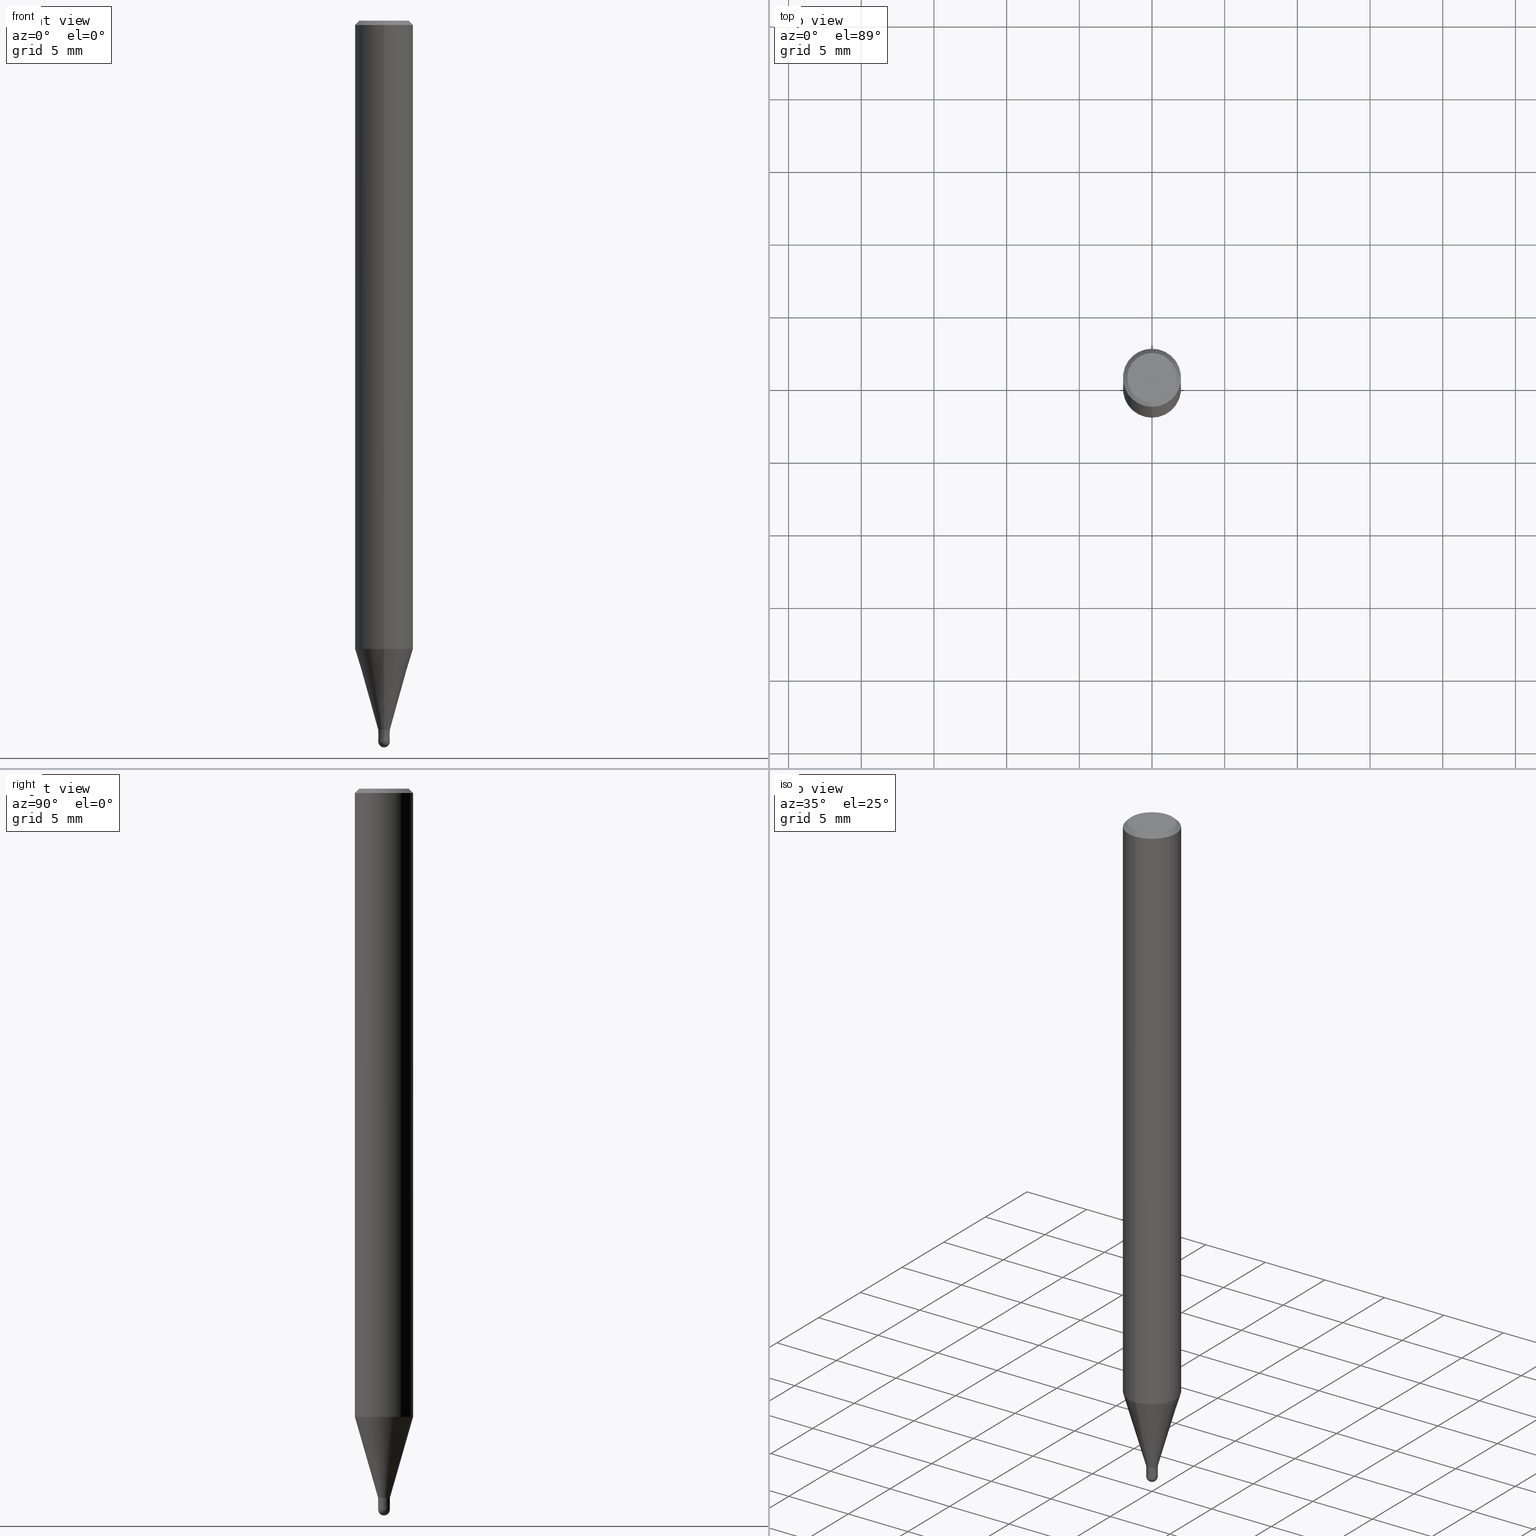
[diagram: canonical four-view strip — front | top / right | iso, engineering-drawing reading convention]
A machine part, canonical four-view strip (front | top / right | iso — engineering-drawing reading convention). The complete STEP part file that produces these views, byte-faithful:
ISO-10303-21;
HEADER;
FILE_DESCRIPTION(('no description'),'unknown implementation level');
FILE_NAME('CFB3008-0120-Huellk.stp','  ',('CIMSOURCE GmbH'),('CADClick - KiM GmbH - www.kimweb.de'),'unknown preprocess','ACIS','unknown authorization');
FILE_SCHEMA(('automotive_design'));
ENDSEC;
DATA;
#1=MECHANICAL_DESIGN_GEOMETRIC_PRESENTATION_REPRESENTATION(' ',(#14,#15,#16,#17,#18,#19,#20,#21,#22,#23,#24,#25,#26,#27,#28,#29,#30,#31,#32,#33,#34,#35,#36,#37,#38,#39,#40,#41,#42,#43,#44,#45,#46,#47,#48,#49,#50,#51,#52,#53,#54,#55,#56,#57,#58,#59,#60,#61,#62,#63,#64,#65,#66),#10);
#2=PRODUCT_DEFINITION_CONTEXT('',#67,'design');
#3=APPLICATION_PROTOCOL_DEFINITION('INTERNATIONAL STANDARD','automotive_design',1994,#67);
#4=PRODUCT_CATEGORY_RELATIONSHIP('NONE','NONE',#68,#69);
#5=SHAPE_DEFINITION_REPRESENTATION(#70,#71);
#6=PRODUCT_DEFINITION_CONTEXT('',#72,'design');
#7=APPLICATION_PROTOCOL_DEFINITION('INTERNATIONAL STANDARD','automotive_design',1994,#72);
#8=PRODUCT_CATEGORY_RELATIONSHIP('NONE','NONE',#73,#74);
#9=SHAPE_DEFINITION_REPRESENTATION(#75,#76);
#10= (GEOMETRIC_REPRESENTATION_CONTEXT(3)GLOBAL_UNCERTAINTY_ASSIGNED_CONTEXT((#79))GLOBAL_UNIT_ASSIGNED_CONTEXT((#81,#82,#83))REPRESENTATION_CONTEXT('NONE','WORKSPACE'));
#14=STYLED_ITEM('',(#85),#86);
#15=STYLED_ITEM('',(#87),#88);
#16=STYLED_ITEM('',(#89),#90);
#17=STYLED_ITEM('',(#91),#92);
#18=STYLED_ITEM('',(#93),#94);
#19=STYLED_ITEM('',(#95),#96);
#20=STYLED_ITEM('',(#97),#98);
#21=STYLED_ITEM('',(#99),#100);
#22=STYLED_ITEM('',(#101),#102);
#23=STYLED_ITEM('',(#103),#104);
#24=STYLED_ITEM('',(#105),#106);
#25=STYLED_ITEM('',(#107),#108);
#26=STYLED_ITEM('',(#109),#110);
#27=STYLED_ITEM('',(#111),#112);
#28=STYLED_ITEM('',(#113),#114);
#29=STYLED_ITEM('',(#115),#116);
#30=STYLED_ITEM('',(#117),#118);
#31=STYLED_ITEM('',(#119),#120);
#32=STYLED_ITEM('',(#121),#122);
#33=STYLED_ITEM('',(#123),#124);
#34=STYLED_ITEM('',(#125),#126);
#35=STYLED_ITEM('',(#127),#128);
#36=STYLED_ITEM('',(#129),#130);
#37=STYLED_ITEM('',(#131),#132);
#38=STYLED_ITEM('',(#133),#134);
#39=STYLED_ITEM('',(#135),#136);
#40=STYLED_ITEM('',(#137),#138);
#41=STYLED_ITEM('',(#139),#140);
#42=STYLED_ITEM('',(#141),#142);
#43=STYLED_ITEM('',(#143),#144);
#44=STYLED_ITEM('',(#145),#146);
#45=STYLED_ITEM('',(#147),#148);
#46=STYLED_ITEM('',(#149),#150);
#47=STYLED_ITEM('',(#151),#152);
#48=STYLED_ITEM('',(#153),#154);
#49=STYLED_ITEM('',(#155),#156);
#50=STYLED_ITEM('',(#157),#158);
#51=STYLED_ITEM('',(#159),#160);
#52=STYLED_ITEM('',(#161),#162);
#53=STYLED_ITEM('',(#163),#164);
#54=STYLED_ITEM('',(#165),#166);
#55=STYLED_ITEM('',(#167),#168);
#56=STYLED_ITEM('',(#169),#170);
#57=STYLED_ITEM('',(#171),#172);
#58=STYLED_ITEM('',(#173),#174);
#59=STYLED_ITEM('',(#175),#176);
#60=STYLED_ITEM('',(#177),#178);
#61=STYLED_ITEM('',(#179),#180);
#62=STYLED_ITEM('',(#181),#182);
#63=STYLED_ITEM('',(#183),#184);
#64=STYLED_ITEM('',(#185),#186);
#65=STYLED_ITEM('',(#187),#188);
#66=STYLED_ITEM('',(#189),#190);
#67=APPLICATION_CONTEXT(' ');
#68=PRODUCT_CATEGORY('part','NONE');
#69=PRODUCT_RELATED_PRODUCT_CATEGORY('detail',' ',(#191));
#70=PRODUCT_DEFINITION_SHAPE('NONE','NONE',#192);
#71=ADVANCED_BREP_SHAPE_REPRESENTATION('1',(#116,#193),#10);
#72=APPLICATION_CONTEXT(' ');
#73=PRODUCT_CATEGORY('part','NONE');
#74=PRODUCT_RELATED_PRODUCT_CATEGORY('detail',' ',(#194));
#75=PRODUCT_DEFINITION_SHAPE('NONE','NONE',#195);
#76=ADVANCED_BREP_SHAPE_REPRESENTATION('2',(#96,#196),#10);
#79=UNCERTAINTY_MEASURE_WITH_UNIT(LENGTH_MEASURE(1.0E-006),#81,'','');
#81= (CONVERSION_BASED_UNIT('MILLIMETRE',#199)LENGTH_UNIT()NAMED_UNIT(#202));
#82= (NAMED_UNIT(#204)PLANE_ANGLE_UNIT()SI_UNIT($,.RADIAN.));
#83= (NAMED_UNIT(#204)SOLID_ANGLE_UNIT()SI_UNIT($,.STERADIAN.));
#85=PRESENTATION_STYLE_ASSIGNMENT((#210));
#86=VERTEX_POINT('',#211);
#87=PRESENTATION_STYLE_ASSIGNMENT((#212));
#88=ADVANCED_FACE('',(#213),#214,.T.);
#89=PRESENTATION_STYLE_ASSIGNMENT((#215));
#90=ADVANCED_FACE('',(#216),#217,.T.);
#91=PRESENTATION_STYLE_ASSIGNMENT((#218));
#92=EDGE_CURVE('',#180,#130,#219,.T.);
#93=PRESENTATION_STYLE_ASSIGNMENT((#220));
#94=ADVANCED_FACE('',(#221),#222,.T.);
#95=PRESENTATION_STYLE_ASSIGNMENT((#223));
#96=MANIFOLD_SOLID_BREP('2',#224);
#97=PRESENTATION_STYLE_ASSIGNMENT((#225));
#98=EDGE_CURVE('',#130,#180,#226,.T.);
#99=PRESENTATION_STYLE_ASSIGNMENT((#227));
#100=EDGE_CURVE('',#182,#184,#228,.T.);
#101=PRESENTATION_STYLE_ASSIGNMENT((#229));
#102=EDGE_CURVE('',#120,#150,#230,.T.);
#103=PRESENTATION_STYLE_ASSIGNMENT((#231));
#104=ADVANCED_FACE('',(#232),#233,.T.);
#105=PRESENTATION_STYLE_ASSIGNMENT((#234));
#106=ADVANCED_FACE('',(#235),#236,.T.);
#107=PRESENTATION_STYLE_ASSIGNMENT((#237));
#108=ADVANCED_FACE('',(#238),#239,.T.);
#109=PRESENTATION_STYLE_ASSIGNMENT((#240));
#110=ADVANCED_FACE('',(#241),#242,.T.);
#111=PRESENTATION_STYLE_ASSIGNMENT((#243));
#112=EDGE_CURVE('',#182,#174,#244,.T.);
#113=PRESENTATION_STYLE_ASSIGNMENT((#245));
#114=EDGE_CURVE('',#156,#126,#246,.T.);
#115=PRESENTATION_STYLE_ASSIGNMENT((#247));
#116=MANIFOLD_SOLID_BREP('1',#248);
#117=PRESENTATION_STYLE_ASSIGNMENT((#249));
#118=ADVANCED_FACE('',(#250),#251,.T.);
#119=PRESENTATION_STYLE_ASSIGNMENT((#252));
#120=VERTEX_POINT('',#253);
#121=PRESENTATION_STYLE_ASSIGNMENT((#254));
#122=EDGE_CURVE('',#186,#174,#255,.T.);
#123=PRESENTATION_STYLE_ASSIGNMENT((#256));
#124=EDGE_CURVE('',#184,#182,#257,.T.);
#125=PRESENTATION_STYLE_ASSIGNMENT((#258));
#126=VERTEX_POINT('',#259);
#127=PRESENTATION_STYLE_ASSIGNMENT((#260));
#128=ADVANCED_FACE('',(#261),#262,.T.);
#129=PRESENTATION_STYLE_ASSIGNMENT((#263));
#130=VERTEX_POINT('',#264);
#131=PRESENTATION_STYLE_ASSIGNMENT((#265));
#132=EDGE_CURVE('',#154,#190,#266,.T.);
#133=PRESENTATION_STYLE_ASSIGNMENT((#267));
#134=EDGE_CURVE('',#130,#190,#268,.T.);
#135=PRESENTATION_STYLE_ASSIGNMENT((#269));
#136=EDGE_CURVE('',#130,#180,#270,.T.);
#137=PRESENTATION_STYLE_ASSIGNMENT((#271));
#138=ADVANCED_FACE('',(#272),#273,.T.);
#139=PRESENTATION_STYLE_ASSIGNMENT((#274));
#140=ADVANCED_FACE('',(#275),#276,.T.);
#141=PRESENTATION_STYLE_ASSIGNMENT((#277));
#142=EDGE_CURVE('',#174,#186,#278,.T.);
#143=PRESENTATION_STYLE_ASSIGNMENT((#279));
#144=EDGE_CURVE('',#186,#184,#280,.T.);
#145=PRESENTATION_STYLE_ASSIGNMENT((#281));
#146=ADVANCED_FACE('',(#282),#283,.T.);
#147=PRESENTATION_STYLE_ASSIGNMENT((#284));
#148=EDGE_CURVE('',#120,#176,#285,.T.);
#149=PRESENTATION_STYLE_ASSIGNMENT((#286));
#150=VERTEX_POINT('',#287);
#151=PRESENTATION_STYLE_ASSIGNMENT((#288));
#152=EDGE_CURVE('',#126,#156,#289,.T.);
#153=PRESENTATION_STYLE_ASSIGNMENT((#290));
#154=VERTEX_POINT('',#291);
#155=PRESENTATION_STYLE_ASSIGNMENT((#292));
#156=VERTEX_POINT('',#293);
#157=PRESENTATION_STYLE_ASSIGNMENT((#294));
#158=EDGE_CURVE('',#150,#156,#295,.T.);
#159=PRESENTATION_STYLE_ASSIGNMENT((#296));
#160=EDGE_CURVE('',#154,#180,#297,.T.);
#161=PRESENTATION_STYLE_ASSIGNMENT((#298));
#162=EDGE_CURVE('',#176,#86,#299,.T.);
#163=PRESENTATION_STYLE_ASSIGNMENT((#300));
#164=ADVANCED_FACE('',(#301),#302,.T.);
#165=PRESENTATION_STYLE_ASSIGNMENT((#303));
#166=EDGE_CURVE('',#86,#176,#304,.T.);
#167=PRESENTATION_STYLE_ASSIGNMENT((#305));
#168=EDGE_CURVE('',#126,#120,#306,.T.);
#169=PRESENTATION_STYLE_ASSIGNMENT((#307));
#170=EDGE_CURVE('',#190,#154,#308,.T.);
#171=PRESENTATION_STYLE_ASSIGNMENT((#309));
#172=ADVANCED_FACE('',(#310,#311),#312,.T.);
#173=PRESENTATION_STYLE_ASSIGNMENT((#313));
#174=VERTEX_POINT('',#314);
#175=PRESENTATION_STYLE_ASSIGNMENT((#315));
#176=VERTEX_POINT('',#316);
#177=PRESENTATION_STYLE_ASSIGNMENT((#317));
#178=EDGE_CURVE('',#86,#150,#318,.T.);
#179=PRESENTATION_STYLE_ASSIGNMENT((#319));
#180=VERTEX_POINT('',#320);
#181=PRESENTATION_STYLE_ASSIGNMENT((#321));
#182=VERTEX_POINT('',#322);
#183=PRESENTATION_STYLE_ASSIGNMENT((#323));
#184=VERTEX_POINT('',#324);
#185=PRESENTATION_STYLE_ASSIGNMENT((#325));
#186=VERTEX_POINT('',#326);
#187=PRESENTATION_STYLE_ASSIGNMENT((#327));
#188=EDGE_CURVE('',#150,#120,#328,.T.);
#189=PRESENTATION_STYLE_ASSIGNMENT((#329));
#190=VERTEX_POINT('',#330);
#191=PRODUCT('1','1','PART-1-DESC',(#331));
#192=PRODUCT_DEFINITION('NONE','NONE',#332,#2);
#193=AXIS2_PLACEMENT_3D('',#333,#334,#335);
#194=PRODUCT('2','2','PART-2-DESC',(#336));
#195=PRODUCT_DEFINITION('NONE','NONE',#337,#6);
#196=AXIS2_PLACEMENT_3D('',#338,#339,#340);
#199=LENGTH_MEASURE_WITH_UNIT(LENGTH_MEASURE(1.0),#341);
#202=DIMENSIONAL_EXPONENTS(1.0,0.0,0.0,0.0,0.0,0.0,0.0);
#204=DIMENSIONAL_EXPONENTS(0.0,0.0,0.0,0.0,0.0,0.0,0.0);
#210=POINT_STYLE(' ',#342,POSITIVE_LENGTH_MEASURE(1.0E-006),#343);
#211=CARTESIAN_POINT('',(0.0,1.7,0.0));
#212=SURFACE_STYLE_USAGE(.BOTH.,#344);
#213=FACE_OUTER_BOUND('',#345,.T.);
#214=PLANE('',#346);
#215=SURFACE_STYLE_USAGE(.BOTH.,#347);
#216=FACE_OUTER_BOUND('',#348,.T.);
#217=SPHERICAL_SURFACE('',#349,0.4);
#218=CURVE_STYLE('',#350,POSITIVE_LENGTH_MEASURE(1.0E-006),#351);
#219=CIRCLE('',#352,0.4);
#220=SURFACE_STYLE_USAGE(.BOTH.,#353);
#221=FACE_OUTER_BOUND('',#354,.T.);
#222=CONICAL_SURFACE('',#355,1.85,0.785398163397453);
#223=SURFACE_STYLE_USAGE(.BOTH.,#356);
#224=CLOSED_SHELL('',(#90,#164,#88,#128,#104));
#225=CURVE_STYLE('',#357,POSITIVE_LENGTH_MEASURE(1.0E-006),#358);
#226=CIRCLE('',#359,0.4);
#227=CURVE_STYLE('',#360,POSITIVE_LENGTH_MEASURE(1.0E-006),#361);
#228=CIRCLE('',#362,0.39995);
#229=CURVE_STYLE('',#363,POSITIVE_LENGTH_MEASURE(1.0E-006),#364);
#230=CIRCLE('',#365,2.0);
#231=SURFACE_STYLE_USAGE(.BOTH.,#366);
#232=FACE_OUTER_BOUND('',#367,.T.);
#233=SPHERICAL_SURFACE('',#368,0.4);
#234=SURFACE_STYLE_USAGE(.BOTH.,#369);
#235=FACE_OUTER_BOUND('',#370,.T.);
#236=CONICAL_SURFACE('',#371,1.19995,0.279246180255812);
#237=SURFACE_STYLE_USAGE(.BOTH.,#372);
#238=FACE_OUTER_BOUND('',#373,.T.);
#239=CONICAL_SURFACE('',#374,1.19995,0.279246180255812);
#240=SURFACE_STYLE_USAGE(.BOTH.,#375);
#241=FACE_OUTER_BOUND('',#376,.T.);
#242=PLANE('',#377);
#243=CURVE_STYLE('',#378,POSITIVE_LENGTH_MEASURE(1.0E-006),#379);
#244=LINE('',#380,#381);
#245=CURVE_STYLE('',#382,POSITIVE_LENGTH_MEASURE(1.0E-006),#383);
#246=CIRCLE('',#384,2.0);
#247=SURFACE_STYLE_USAGE(.BOTH.,#385);
#248=CLOSED_SHELL('',(#106,#118,#146,#172,#110,#94,#140,#108,#138));
#249=SURFACE_STYLE_USAGE(.BOTH.,#386);
#250=FACE_OUTER_BOUND('',#387,.T.);
#251=CYLINDRICAL_SURFACE('',#388,2.0);
#252=POINT_STYLE(' ',#389,POSITIVE_LENGTH_MEASURE(1.0E-006),#390);
#253=CARTESIAN_POINT('',(2.44921270764475E-016,-2.0,-0.299999999999997));
#254=CURVE_STYLE('',#391,POSITIVE_LENGTH_MEASURE(1.0E-006),#392);
#255=CIRCLE('',#393,1.99995);
#256=CURVE_STYLE('',#394,POSITIVE_LENGTH_MEASURE(1.0E-006),#395);
#257=CIRCLE('',#396,0.39995);
#258=POINT_STYLE(' ',#397,POSITIVE_LENGTH_MEASURE(1.0E-006),#398);
#259=CARTESIAN_POINT('',(2.44921270764475E-016,-2.0,-43.22));
#260=SURFACE_STYLE_USAGE(.BOTH.,#399);
#261=FACE_OUTER_BOUND('',#400,.T.);
#262=CONICAL_SURFACE('',#401,0.39995,0.000124999999349083);
#263=POINT_STYLE(' ',#402,POSITIVE_LENGTH_MEASURE(1.0E-006),#403);
#264=CARTESIAN_POINT('',(4.89842541528951E-017,-0.4,-49.6));
#265=CURVE_STYLE('',#404,POSITIVE_LENGTH_MEASURE(1.0E-006),#405);
#266=CIRCLE('',#406,0.3999);
#267=CURVE_STYLE('',#407,POSITIVE_LENGTH_MEASURE(1.0E-006),#408);
#268=LINE('',#409,#410);
#269=CURVE_STYLE('',#411,POSITIVE_LENGTH_MEASURE(1.0E-006),#412);
#270=CIRCLE('',#413,0.4);
#271=SURFACE_STYLE_USAGE(.BOTH.,#414);
#272=FACE_OUTER_BOUND('',#415,.T.);
#273=PLANE('',#416);
#274=SURFACE_STYLE_USAGE(.BOTH.,#417);
#275=FACE_OUTER_BOUND('',#418,.T.);
#276=CYLINDRICAL_SURFACE('',#419,2.0);
#277=CURVE_STYLE('',#420,POSITIVE_LENGTH_MEASURE(1.0E-006),#421);
#278=CIRCLE('',#422,1.99995);
#279=CURVE_STYLE('',#423,POSITIVE_LENGTH_MEASURE(1.0E-006),#424);
#280=LINE('',#425,#426);
#281=SURFACE_STYLE_USAGE(.BOTH.,#427);
#282=FACE_OUTER_BOUND('',#428,.T.);
#283=CONICAL_SURFACE('',#429,1.85,0.785398163397453);
#284=CURVE_STYLE('',#430,POSITIVE_LENGTH_MEASURE(1.0E-006),#431);
#285=LINE('',#432,#433);
#286=POINT_STYLE(' ',#434,POSITIVE_LENGTH_MEASURE(1.0E-006),#435);
#287=CARTESIAN_POINT('',(0.0,2.0,-0.299999999999997));
#288=CURVE_STYLE('',#436,POSITIVE_LENGTH_MEASURE(1.0E-006),#437);
#289=CIRCLE('',#438,2.0);
#290=POINT_STYLE(' ',#439,POSITIVE_LENGTH_MEASURE(1.0E-006),#440);
#291=CARTESIAN_POINT('',(0.0,0.3999,-48.8));
#292=POINT_STYLE(' ',#441,POSITIVE_LENGTH_MEASURE(1.0E-006),#442);
#293=CARTESIAN_POINT('',(0.0,2.0,-43.22));
#294=CURVE_STYLE('',#443,POSITIVE_LENGTH_MEASURE(1.0E-006),#444);
#295=LINE('',#445,#446);
#296=CURVE_STYLE('',#447,POSITIVE_LENGTH_MEASURE(1.0E-006),#448);
#297=LINE('',#449,#450);
#298=CURVE_STYLE('',#451,POSITIVE_LENGTH_MEASURE(1.0E-006),#452);
#299=CIRCLE('',#453,1.7);
#300=SURFACE_STYLE_USAGE(.BOTH.,#454);
#301=FACE_OUTER_BOUND('',#455,.T.);
#302=CONICAL_SURFACE('',#456,0.39995,0.000124999999349083);
#303=CURVE_STYLE('',#457,POSITIVE_LENGTH_MEASURE(1.0E-006),#458);
#304=CIRCLE('',#459,1.7);
#305=CURVE_STYLE('',#460,POSITIVE_LENGTH_MEASURE(1.0E-006),#461);
#306=LINE('',#462,#463);
#307=CURVE_STYLE('',#464,POSITIVE_LENGTH_MEASURE(1.0E-006),#465);
#308=CIRCLE('',#466,0.3999);
#309=SURFACE_STYLE_USAGE(.BOTH.,#467);
#310=FACE_OUTER_BOUND('',#468,.T.);
#311=FACE_BOUND('',#469,.T.);
#312=PLANE('',#470);
#313=POINT_STYLE(' ',#471,POSITIVE_LENGTH_MEASURE(1.0E-006),#472);
#314=CARTESIAN_POINT('',(2.44915147732706E-016,-1.99995,-43.22));
#315=POINT_STYLE(' ',#473,POSITIVE_LENGTH_MEASURE(1.0E-006),#474);
#316=CARTESIAN_POINT('',(2.08183080149804E-016,-1.7,0.0));
#317=CURVE_STYLE('',#475,POSITIVE_LENGTH_MEASURE(1.0E-006),#476);
#318=LINE('',#477,#478);
#319=POINT_STYLE(' ',#479,POSITIVE_LENGTH_MEASURE(1.0E-006),#480);
#320=CARTESIAN_POINT('',(0.0,0.4,-49.6));
#321=POINT_STYLE(' ',#481,POSITIVE_LENGTH_MEASURE(1.0E-006),#482);
#322=CARTESIAN_POINT('',(4.8978131121126E-017,-0.39995,-48.8));
#323=POINT_STYLE(' ',#483,POSITIVE_LENGTH_MEASURE(1.0E-006),#484);
#324=CARTESIAN_POINT('',(0.0,0.39995,-48.8));
#325=POINT_STYLE(' ',#485,POSITIVE_LENGTH_MEASURE(1.0E-006),#486);
#326=CARTESIAN_POINT('',(0.0,1.99995,-43.22));
#327=CURVE_STYLE('',#487,POSITIVE_LENGTH_MEASURE(1.0E-006),#488);
#328=CIRCLE('',#489,2.0);
#329=POINT_STYLE(' ',#490,POSITIVE_LENGTH_MEASURE(1.0E-006),#491);
#330=CARTESIAN_POINT('',(4.89720080893569E-017,-0.3999,-48.8));
#331=PRODUCT_CONTEXT('',#67,'mechanical');
#332=PRODUCT_DEFINITION_FORMATION_WITH_SPECIFIED_SOURCE(' ','NONE',#191,.NOT_KNOWN.);
#333=CARTESIAN_POINT('',(0.0,0.0,0.0));
#334=DIRECTION('',(0.0,0.0,1.0));
#335=DIRECTION('',(1.0,0.0,0.0));
#336=PRODUCT_CONTEXT('',#72,'mechanical');
#337=PRODUCT_DEFINITION_FORMATION_WITH_SPECIFIED_SOURCE(' ','NONE',#194,.NOT_KNOWN.);
#338=CARTESIAN_POINT('',(0.0,0.0,0.0));
#339=DIRECTION('',(0.0,0.0,1.0));
#340=DIRECTION('',(1.0,0.0,0.0));
#341= (NAMED_UNIT(#202)LENGTH_UNIT()SI_UNIT(.MILLI.,.METRE.));
#342=PRE_DEFINED_MARKER('');
#343=COLOUR_RGB('',0.498039215803146,0.498039215803146,0.498039215803146);
#344=SURFACE_SIDE_STYLE('',(#493));
#345=EDGE_LOOP('',(#494,#495));
#346=AXIS2_PLACEMENT_3D('',#496,#497,#498);
#347=SURFACE_SIDE_STYLE('',(#499));
#348=EDGE_LOOP('',(#500,#501));
#349=AXIS2_PLACEMENT_3D('',#502,#503,#504);
#350=DRAUGHTING_PRE_DEFINED_CURVE_FONT('continuous');
#351=COLOUR_RGB('',0.800000011920929,0.800000011920929,0.800000011920929);
#352=AXIS2_PLACEMENT_3D('',#505,#506,#507);
#353=SURFACE_SIDE_STYLE('',(#508));
#354=EDGE_LOOP('',(#509,#510,#511,#512));
#355=AXIS2_PLACEMENT_3D('',#513,#514,#515);
#356=SURFACE_SIDE_STYLE('',(#516));
#357=DRAUGHTING_PRE_DEFINED_CURVE_FONT('continuous');
#358=COLOUR_RGB('',0.800000011920929,0.800000011920929,0.800000011920929);
#359=AXIS2_PLACEMENT_3D('',#517,#518,#519);
#360=DRAUGHTING_PRE_DEFINED_CURVE_FONT('continuous');
#361=COLOUR_RGB('',0.498039215803146,0.498039215803146,0.498039215803146);
#362=AXIS2_PLACEMENT_3D('',#520,#521,#522);
#363=DRAUGHTING_PRE_DEFINED_CURVE_FONT('continuous');
#364=COLOUR_RGB('',0.498039215803146,0.498039215803146,0.498039215803146);
#365=AXIS2_PLACEMENT_3D('',#523,#524,#525);
#366=SURFACE_SIDE_STYLE('',(#526));
#367=EDGE_LOOP('',(#527,#528));
#368=AXIS2_PLACEMENT_3D('',#529,#530,#531);
#369=SURFACE_SIDE_STYLE('',(#532));
#370=EDGE_LOOP('',(#533,#534,#535,#536));
#371=AXIS2_PLACEMENT_3D('',#537,#538,#539);
#372=SURFACE_SIDE_STYLE('',(#540));
#373=EDGE_LOOP('',(#541,#542,#543,#544));
#374=AXIS2_PLACEMENT_3D('',#545,#546,#547);
#375=SURFACE_SIDE_STYLE('',(#548));
#376=EDGE_LOOP('',(#549,#550));
#377=AXIS2_PLACEMENT_3D('',#551,#552,#553);
#378=DRAUGHTING_PRE_DEFINED_CURVE_FONT('continuous');
#379=COLOUR_RGB('',0.498039215803146,0.498039215803146,0.498039215803146);
#380=CARTESIAN_POINT('',(1.46946639426916E-016,-1.19995,-46.01));
#381=VECTOR('',#554,1.0);
#382=DRAUGHTING_PRE_DEFINED_CURVE_FONT('continuous');
#383=COLOUR_RGB('',0.498039215803146,0.498039215803146,0.498039215803146);
#384=AXIS2_PLACEMENT_3D('',#555,#556,#557);
#385=SURFACE_SIDE_STYLE('',(#558));
#386=SURFACE_SIDE_STYLE('',(#559));
#387=EDGE_LOOP('',(#560,#561,#562,#563));
#388=AXIS2_PLACEMENT_3D('',#564,#565,#566);
#389=PRE_DEFINED_MARKER('');
#390=COLOUR_RGB('',0.498039215803146,0.498039215803146,0.498039215803146);
#391=DRAUGHTING_PRE_DEFINED_CURVE_FONT('continuous');
#392=COLOUR_RGB('',0.498039215803146,0.498039215803146,0.498039215803146);
#393=AXIS2_PLACEMENT_3D('',#567,#568,#569);
#394=DRAUGHTING_PRE_DEFINED_CURVE_FONT('continuous');
#395=COLOUR_RGB('',0.498039215803146,0.498039215803146,0.498039215803146);
#396=AXIS2_PLACEMENT_3D('',#570,#571,#572);
#397=PRE_DEFINED_MARKER('');
#398=COLOUR_RGB('',0.498039215803146,0.498039215803146,0.498039215803146);
#399=SURFACE_SIDE_STYLE('',(#573));
#400=EDGE_LOOP('',(#574,#575,#576,#577));
#401=AXIS2_PLACEMENT_3D('',#578,#579,#580);
#402=PRE_DEFINED_MARKER('');
#403=COLOUR_RGB('',0.800000011920929,0.800000011920929,0.800000011920929);
#404=DRAUGHTING_PRE_DEFINED_CURVE_FONT('continuous');
#405=COLOUR_RGB('',0.800000011920929,0.800000011920929,0.800000011920929);
#406=AXIS2_PLACEMENT_3D('',#581,#582,#583);
#407=DRAUGHTING_PRE_DEFINED_CURVE_FONT('continuous');
#408=COLOUR_RGB('',0.800000011920929,0.800000011920929,0.800000011920929);
#409=CARTESIAN_POINT('',(4.8978131121126E-017,-0.39995,-49.2));
#410=VECTOR('',#584,1.0);
#411=DRAUGHTING_PRE_DEFINED_CURVE_FONT('continuous');
#412=COLOUR_RGB('',0.800000011920929,0.800000011920929,0.800000011920929);
#413=AXIS2_PLACEMENT_3D('',#585,#586,#587);
#414=SURFACE_SIDE_STYLE('',(#588));
#415=EDGE_LOOP('',(#589,#590));
#416=AXIS2_PLACEMENT_3D('',#591,#592,#593);
#417=SURFACE_SIDE_STYLE('',(#594));
#418=EDGE_LOOP('',(#595,#596,#597,#598));
#419=AXIS2_PLACEMENT_3D('',#599,#600,#601);
#420=DRAUGHTING_PRE_DEFINED_CURVE_FONT('continuous');
#421=COLOUR_RGB('',0.498039215803146,0.498039215803146,0.498039215803146);
#422=AXIS2_PLACEMENT_3D('',#602,#603,#604);
#423=DRAUGHTING_PRE_DEFINED_CURVE_FONT('continuous');
#424=COLOUR_RGB('',0.498039215803146,0.498039215803146,0.498039215803146);
#425=CARTESIAN_POINT('',(-1.46946639426916E-016,1.19995,-46.01));
#426=VECTOR('',#605,1.0);
#427=SURFACE_SIDE_STYLE('',(#606));
#428=EDGE_LOOP('',(#607,#608,#609,#610));
#429=AXIS2_PLACEMENT_3D('',#611,#612,#613);
#430=DRAUGHTING_PRE_DEFINED_CURVE_FONT('continuous');
#431=COLOUR_RGB('',0.498039215803146,0.498039215803146,0.498039215803146);
#432=CARTESIAN_POINT('',(2.2655217545714E-016,-1.85,-0.149999999999999));
#433=VECTOR('',#614,1.0);
#434=PRE_DEFINED_MARKER('');
#435=COLOUR_RGB('',0.498039215803146,0.498039215803146,0.498039215803146);
#436=DRAUGHTING_PRE_DEFINED_CURVE_FONT('continuous');
#437=COLOUR_RGB('',0.498039215803146,0.498039215803146,0.498039215803146);
#438=AXIS2_PLACEMENT_3D('',#615,#616,#617);
#439=PRE_DEFINED_MARKER('');
#440=COLOUR_RGB('',0.800000011920929,0.800000011920929,0.800000011920929);
#441=PRE_DEFINED_MARKER('');
#442=COLOUR_RGB('',0.498039215803146,0.498039215803146,0.498039215803146);
#443=DRAUGHTING_PRE_DEFINED_CURVE_FONT('continuous');
#444=COLOUR_RGB('',0.498039215803146,0.498039215803146,0.498039215803146);
#445=CARTESIAN_POINT('',(-2.44921270764475E-016,2.0,-21.76));
#446=VECTOR('',#618,1.0);
#447=DRAUGHTING_PRE_DEFINED_CURVE_FONT('continuous');
#448=COLOUR_RGB('',0.800000011920929,0.800000011920929,0.800000011920929);
#449=CARTESIAN_POINT('',(-4.8978131121126E-017,0.39995,-49.2));
#450=VECTOR('',#619,1.0);
#451=DRAUGHTING_PRE_DEFINED_CURVE_FONT('continuous');
#452=COLOUR_RGB('',0.498039215803146,0.498039215803146,0.498039215803146);
#453=AXIS2_PLACEMENT_3D('',#620,#621,#622);
#454=SURFACE_SIDE_STYLE('',(#623));
#455=EDGE_LOOP('',(#624,#625,#626,#627));
#456=AXIS2_PLACEMENT_3D('',#628,#629,#630);
#457=DRAUGHTING_PRE_DEFINED_CURVE_FONT('continuous');
#458=COLOUR_RGB('',0.498039215803146,0.498039215803146,0.498039215803146);
#459=AXIS2_PLACEMENT_3D('',#631,#632,#633);
#460=DRAUGHTING_PRE_DEFINED_CURVE_FONT('continuous');
#461=COLOUR_RGB('',0.498039215803146,0.498039215803146,0.498039215803146);
#462=CARTESIAN_POINT('',(2.44921270764475E-016,-2.0,-21.76));
#463=VECTOR('',#634,1.0);
#464=DRAUGHTING_PRE_DEFINED_CURVE_FONT('continuous');
#465=COLOUR_RGB('',0.800000011920929,0.800000011920929,0.800000011920929);
#466=AXIS2_PLACEMENT_3D('',#635,#636,#637);
#467=SURFACE_SIDE_STYLE('',(#638));
#468=EDGE_LOOP('',(#639,#640));
#469=EDGE_LOOP('',(#641,#642));
#470=AXIS2_PLACEMENT_3D('',#643,#644,#645);
#471=PRE_DEFINED_MARKER('');
#472=COLOUR_RGB('',0.498039215803146,0.498039215803146,0.498039215803146);
#473=PRE_DEFINED_MARKER('');
#474=COLOUR_RGB('',0.498039215803146,0.498039215803146,0.498039215803146);
#475=DRAUGHTING_PRE_DEFINED_CURVE_FONT('continuous');
#476=COLOUR_RGB('',0.498039215803146,0.498039215803146,0.498039215803146);
#477=CARTESIAN_POINT('',(-2.2655217545714E-016,1.85,-0.149999999999999));
#478=VECTOR('',#646,1.0);
#479=PRE_DEFINED_MARKER('');
#480=COLOUR_RGB('',0.800000011920929,0.800000011920929,0.800000011920929);
#481=PRE_DEFINED_MARKER('');
#482=COLOUR_RGB('',0.498039215803146,0.498039215803146,0.498039215803146);
#483=PRE_DEFINED_MARKER('');
#484=COLOUR_RGB('',0.498039215803146,0.498039215803146,0.498039215803146);
#485=PRE_DEFINED_MARKER('');
#486=COLOUR_RGB('',0.498039215803146,0.498039215803146,0.498039215803146);
#487=DRAUGHTING_PRE_DEFINED_CURVE_FONT('continuous');
#488=COLOUR_RGB('',0.498039215803146,0.498039215803146,0.498039215803146);
#489=AXIS2_PLACEMENT_3D('',#647,#648,#649);
#490=PRE_DEFINED_MARKER('');
#491=COLOUR_RGB('',0.800000011920929,0.800000011920929,0.800000011920929);
#493=SURFACE_STYLE_FILL_AREA(#650);
#494=ORIENTED_EDGE('',*,*,#132,.F.);
#495=ORIENTED_EDGE('',*,*,#170,.F.);
#496=CARTESIAN_POINT('',(0.0,0.19995,-48.8));
#497=DIRECTION('',(-0.0,0.0,1.0));
#498=DIRECTION('',(0.0,-1.0,0.0));
#499=SURFACE_STYLE_FILL_AREA(#651);
#500=ORIENTED_EDGE('',*,*,#136,.F.);
#501=ORIENTED_EDGE('',*,*,#98,.T.);
#502=CARTESIAN_POINT('',(0.0,0.0,-49.6));
#503=DIRECTION('',(0.0,1.0,0.0));
#504=DIRECTION('',(0.0,0.0,-1.0));
#505=CARTESIAN_POINT('',(0.0,0.0,-49.6));
#506=DIRECTION('',(0.0,0.0,-1.0));
#507=DIRECTION('',(0.0,1.0,0.0));
#508=SURFACE_STYLE_FILL_AREA(#652);
#509=ORIENTED_EDGE('',*,*,#178,.T.);
#510=ORIENTED_EDGE('',*,*,#102,.F.);
#511=ORIENTED_EDGE('',*,*,#148,.T.);
#512=ORIENTED_EDGE('',*,*,#162,.T.);
#513=CARTESIAN_POINT('',(0.0,0.0,-0.149999999999999));
#514=DIRECTION('',(0.0,-0.0,-1.0));
#515=DIRECTION('',(0.0,1.0,0.0));
#516=SURFACE_STYLE_FILL_AREA(#653);
#517=CARTESIAN_POINT('',(0.0,0.0,-49.6));
#518=DIRECTION('',(0.0,0.0,-1.0));
#519=DIRECTION('',(0.0,1.0,0.0));
#520=CARTESIAN_POINT('',(0.0,0.0,-48.8));
#521=DIRECTION('',(0.0,0.0,-1.0));
#522=DIRECTION('',(0.0,1.0,0.0));
#523=CARTESIAN_POINT('',(0.0,0.0,-0.299999999999997));
#524=DIRECTION('',(0.0,0.0,-1.0));
#525=DIRECTION('',(0.0,1.0,0.0));
#526=SURFACE_STYLE_FILL_AREA(#654);
#527=ORIENTED_EDGE('',*,*,#136,.T.);
#528=ORIENTED_EDGE('',*,*,#92,.T.);
#529=CARTESIAN_POINT('',(0.0,0.0,-49.6));
#530=DIRECTION('',(0.0,1.0,0.0));
#531=DIRECTION('',(0.0,0.0,-1.0));
#532=SURFACE_STYLE_FILL_AREA(#655);
#533=ORIENTED_EDGE('',*,*,#144,.F.);
#534=ORIENTED_EDGE('',*,*,#122,.T.);
#535=ORIENTED_EDGE('',*,*,#112,.F.);
#536=ORIENTED_EDGE('',*,*,#124,.F.);
#537=CARTESIAN_POINT('',(0.0,0.0,-46.01));
#538=DIRECTION('',(-0.0,-0.0,1.0));
#539=DIRECTION('',(0.0,1.0,0.0));
#540=SURFACE_STYLE_FILL_AREA(#656);
#541=ORIENTED_EDGE('',*,*,#144,.T.);
#542=ORIENTED_EDGE('',*,*,#100,.F.);
#543=ORIENTED_EDGE('',*,*,#112,.T.);
#544=ORIENTED_EDGE('',*,*,#142,.T.);
#545=CARTESIAN_POINT('',(0.0,0.0,-46.01));
#546=DIRECTION('',(-0.0,-0.0,1.0));
#547=DIRECTION('',(0.0,1.0,0.0));
#548=SURFACE_STYLE_FILL_AREA(#657);
#549=ORIENTED_EDGE('',*,*,#166,.F.);
#550=ORIENTED_EDGE('',*,*,#162,.F.);
#551=CARTESIAN_POINT('',(0.0,0.85,0.0));
#552=DIRECTION('',(-0.0,0.0,1.0));
#553=DIRECTION('',(0.0,-1.0,0.0));
#554=DIRECTION('',(3.37539605616001E-017,-0.275631107549324,0.961263487578267));
#555=CARTESIAN_POINT('',(0.0,0.0,-43.22));
#556=DIRECTION('',(0.0,0.0,-1.0));
#557=DIRECTION('',(0.0,1.0,0.0));
#558=SURFACE_STYLE_FILL_AREA(#658);
#559=SURFACE_STYLE_FILL_AREA(#659);
#560=ORIENTED_EDGE('',*,*,#158,.F.);
#561=ORIENTED_EDGE('',*,*,#188,.T.);
#562=ORIENTED_EDGE('',*,*,#168,.F.);
#563=ORIENTED_EDGE('',*,*,#114,.F.);
#564=CARTESIAN_POINT('',(0.0,0.0,-21.76));
#565=DIRECTION('',(-0.0,-0.0,1.0));
#566=DIRECTION('',(0.0,1.0,0.0));
#567=CARTESIAN_POINT('',(0.0,0.0,-43.22));
#568=DIRECTION('',(0.0,0.0,-1.0));
#569=DIRECTION('',(0.0,1.0,0.0));
#570=CARTESIAN_POINT('',(0.0,0.0,-48.8));
#571=DIRECTION('',(0.0,0.0,-1.0));
#572=DIRECTION('',(0.0,1.0,0.0));
#573=SURFACE_STYLE_FILL_AREA(#660);
#574=ORIENTED_EDGE('',*,*,#160,.T.);
#575=ORIENTED_EDGE('',*,*,#98,.F.);
#576=ORIENTED_EDGE('',*,*,#134,.T.);
#577=ORIENTED_EDGE('',*,*,#170,.T.);
#578=CARTESIAN_POINT('',(0.0,0.0,-49.2));
#579=DIRECTION('',(0.0,-0.0,-1.0));
#580=DIRECTION('',(0.0,1.0,0.0));
#581=CARTESIAN_POINT('',(0.0,0.0,-48.8));
#582=DIRECTION('',(0.0,0.0,-1.0));
#583=DIRECTION('',(0.0,1.0,0.0));
#584=DIRECTION('',(-1.53075793032046E-020,0.000124999999023563,0.9999999921875));
#585=CARTESIAN_POINT('',(0.0,0.0,-49.6));
#586=DIRECTION('',(1.0,0.0,1.22460635382238E-016));
#587=DIRECTION('',(-1.22460635382238E-016,0.0,1.0));
#588=SURFACE_STYLE_FILL_AREA(#661);
#589=ORIENTED_EDGE('',*,*,#124,.T.);
#590=ORIENTED_EDGE('',*,*,#100,.T.);
#591=CARTESIAN_POINT('',(0.0,0.199975,-48.8));
#592=DIRECTION('',(0.0,0.0,-1.0));
#593=DIRECTION('',(0.0,1.0,0.0));
#594=SURFACE_STYLE_FILL_AREA(#662);
#595=ORIENTED_EDGE('',*,*,#158,.T.);
#596=ORIENTED_EDGE('',*,*,#152,.F.);
#597=ORIENTED_EDGE('',*,*,#168,.T.);
#598=ORIENTED_EDGE('',*,*,#102,.T.);
#599=CARTESIAN_POINT('',(0.0,0.0,-21.76));
#600=DIRECTION('',(-0.0,-0.0,1.0));
#601=DIRECTION('',(0.0,1.0,0.0));
#602=CARTESIAN_POINT('',(0.0,0.0,-43.22));
#603=DIRECTION('',(0.0,0.0,-1.0));
#604=DIRECTION('',(0.0,1.0,0.0));
#605=DIRECTION('',(3.37539605616001E-017,-0.275631107549324,-0.961263487578267));
#606=SURFACE_STYLE_FILL_AREA(#663);
#607=ORIENTED_EDGE('',*,*,#178,.F.);
#608=ORIENTED_EDGE('',*,*,#166,.T.);
#609=ORIENTED_EDGE('',*,*,#148,.F.);
#610=ORIENTED_EDGE('',*,*,#188,.F.);
#611=CARTESIAN_POINT('',(0.0,0.0,-0.149999999999999));
#612=DIRECTION('',(0.0,-0.0,-1.0));
#613=DIRECTION('',(0.0,1.0,0.0));
#614=DIRECTION('',(-8.6592745707194E-017,0.707106781186551,0.707106781186544));
#615=CARTESIAN_POINT('',(0.0,0.0,-43.22));
#616=DIRECTION('',(0.0,0.0,-1.0));
#617=DIRECTION('',(0.0,1.0,0.0));
#618=DIRECTION('',(0.0,0.0,-1.0));
#619=DIRECTION('',(-1.53075793032046E-020,0.000124999999023563,-0.9999999921875));
#620=CARTESIAN_POINT('',(0.0,0.0,0.0));
#621=DIRECTION('',(0.0,0.0,-1.0));
#622=DIRECTION('',(0.0,1.0,0.0));
#623=SURFACE_STYLE_FILL_AREA(#664);
#624=ORIENTED_EDGE('',*,*,#160,.F.);
#625=ORIENTED_EDGE('',*,*,#132,.T.);
#626=ORIENTED_EDGE('',*,*,#134,.F.);
#627=ORIENTED_EDGE('',*,*,#92,.F.);
#628=CARTESIAN_POINT('',(0.0,0.0,-49.2));
#629=DIRECTION('',(0.0,-0.0,-1.0));
#630=DIRECTION('',(0.0,1.0,0.0));
#631=CARTESIAN_POINT('',(0.0,0.0,0.0));
#632=DIRECTION('',(0.0,0.0,-1.0));
#633=DIRECTION('',(0.0,1.0,0.0));
#634=DIRECTION('',(-0.0,-0.0,1.0));
#635=CARTESIAN_POINT('',(0.0,0.0,-48.8));
#636=DIRECTION('',(0.0,0.0,-1.0));
#637=DIRECTION('',(0.0,1.0,0.0));
#638=SURFACE_STYLE_FILL_AREA(#665);
#639=ORIENTED_EDGE('',*,*,#114,.T.);
#640=ORIENTED_EDGE('',*,*,#152,.T.);
#641=ORIENTED_EDGE('',*,*,#122,.F.);
#642=ORIENTED_EDGE('',*,*,#142,.F.);
#643=CARTESIAN_POINT('',(0.0,1.0,-43.22));
#644=DIRECTION('',(0.0,0.0,-1.0));
#645=DIRECTION('',(0.0,1.0,0.0));
#646=DIRECTION('',(-8.6592745707194E-017,0.707106781186551,-0.707106781186544));
#647=CARTESIAN_POINT('',(0.0,0.0,-0.299999999999997));
#648=DIRECTION('',(0.0,0.0,-1.0));
#649=DIRECTION('',(0.0,1.0,0.0));
#650=FILL_AREA_STYLE('',(#666));
#651=FILL_AREA_STYLE('',(#667));
#652=FILL_AREA_STYLE('',(#668));
#653=FILL_AREA_STYLE('',(#669));
#654=FILL_AREA_STYLE('',(#670));
#655=FILL_AREA_STYLE('',(#671));
#656=FILL_AREA_STYLE('',(#672));
#657=FILL_AREA_STYLE('',(#673));
#658=FILL_AREA_STYLE('',(#674));
#659=FILL_AREA_STYLE('',(#675));
#660=FILL_AREA_STYLE('',(#676));
#661=FILL_AREA_STYLE('',(#677));
#662=FILL_AREA_STYLE('',(#678));
#663=FILL_AREA_STYLE('',(#679));
#664=FILL_AREA_STYLE('',(#680));
#665=FILL_AREA_STYLE('',(#681));
#666=FILL_AREA_STYLE_COLOUR('',#682);
#667=FILL_AREA_STYLE_COLOUR('',#683);
#668=FILL_AREA_STYLE_COLOUR('',#684);
#669=FILL_AREA_STYLE_COLOUR('',#685);
#670=FILL_AREA_STYLE_COLOUR('',#686);
#671=FILL_AREA_STYLE_COLOUR('',#687);
#672=FILL_AREA_STYLE_COLOUR('',#688);
#673=FILL_AREA_STYLE_COLOUR('',#689);
#674=FILL_AREA_STYLE_COLOUR('',#690);
#675=FILL_AREA_STYLE_COLOUR('',#691);
#676=FILL_AREA_STYLE_COLOUR('',#692);
#677=FILL_AREA_STYLE_COLOUR('',#693);
#678=FILL_AREA_STYLE_COLOUR('',#694);
#679=FILL_AREA_STYLE_COLOUR('',#695);
#680=FILL_AREA_STYLE_COLOUR('',#696);
#681=FILL_AREA_STYLE_COLOUR('',#697);
#682=COLOUR_RGB('',0.800000011920929,0.800000011920929,0.800000011920929);
#683=COLOUR_RGB('',0.800000011920929,0.800000011920929,0.800000011920929);
#684=COLOUR_RGB('',0.498039215803146,0.498039215803146,0.498039215803146);
#685=COLOUR_RGB('',0.800000011920929,0.800000011920929,0.800000011920929);
#686=COLOUR_RGB('',0.800000011920929,0.800000011920929,0.800000011920929);
#687=COLOUR_RGB('',0.498039215803146,0.498039215803146,0.498039215803146);
#688=COLOUR_RGB('',0.498039215803146,0.498039215803146,0.498039215803146);
#689=COLOUR_RGB('',0.498039215803146,0.498039215803146,0.498039215803146);
#690=COLOUR_RGB('',0.498039215803146,0.498039215803146,0.498039215803146);
#691=COLOUR_RGB('',0.498039215803146,0.498039215803146,0.498039215803146);
#692=COLOUR_RGB('',0.800000011920929,0.800000011920929,0.800000011920929);
#693=COLOUR_RGB('',0.498039215803146,0.498039215803146,0.498039215803146);
#694=COLOUR_RGB('',0.498039215803146,0.498039215803146,0.498039215803146);
#695=COLOUR_RGB('',0.498039215803146,0.498039215803146,0.498039215803146);
#696=COLOUR_RGB('',0.800000011920929,0.800000011920929,0.800000011920929);
#697=COLOUR_RGB('',0.498039215803146,0.498039215803146,0.498039215803146);
#698=AXIS2_PLACEMENT_3D('PCS',#699,#700,#701);
#699=CARTESIAN_POINT('',(0.0,0.0,0.0));
#700=DIRECTION('',(0.0,0.0,1.0));
#701=DIRECTION('',(1.0,0.0,0.0));
#702=AXIS2_PLACEMENT_3D('CIP',#703,#704,#705);
#703=CARTESIAN_POINT('',(0.0,0.0,-50.0));
#704=DIRECTION('',(0.0,0.0,1.0));
#705=DIRECTION('',(1.0,0.0,0.0));
#706=AXIS2_PLACEMENT_3D('CRP',#707,#708,#709);
#707=CARTESIAN_POINT('',(-0.4,0.0,-50.0));
#708=DIRECTION('',(0.0,0.0,1.0));
#709=DIRECTION('',(1.0,0.0,0.0));
#710=AXIS2_PLACEMENT_3D('MCS',#711,#712,#713);
#711=CARTESIAN_POINT('',(0.0,0.0,-43.22));
#712=DIRECTION('',(0.0,0.0,1.0));
#713=DIRECTION('',(1.0,0.0,0.0));
#714=CONSTRUCTIVE_GEOMETRY_REPRESENTATION_RELATIONSHIP('coordinate systems',$,#71,#715);
#715=CONSTRUCTIVE_GEOMETRY_REPRESENTATION('coordinate systems',(#698,#702,#706,#710),#10);
ENDSEC;
END-ISO-10303-21;
